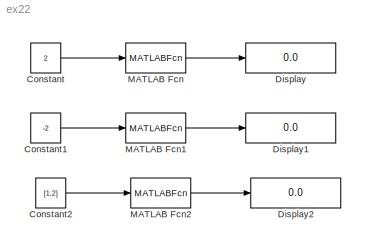
MODEL ex22
KIND model
CONFIG AbsTol = auto
CONFIG FixedStep = auto
CONFIG MaxStep = auto
CONFIG MinStep = auto
CONFIG RelTol = 1e-3
CONFIG Solver = ode45
CONFIG SolverMode = Auto
CONFIG StartTime = 0.0
CONFIG StopTime = 10.0
BLOCK [Constant] Constant
  Value = 2
BLOCK [Constant] Constant1
  Value = -2
BLOCK [Constant] Constant2
  Value = [1,2]
BLOCK [Display] Display
  Decimation = 1
  Ports = [1]
BLOCK [Display] Display1
  Decimation = 1
  Ports = [1]
BLOCK [Display] Display2
  Decimation = 1
  Ports = [1]
BLOCK [MATLABFcn] MATLAB Fcn
  MATLABFcn = functief
BLOCK [MATLABFcn] MATLAB Fcn1
  MATLABFcn = functief
BLOCK [MATLABFcn] MATLAB Fcn2
  MATLABFcn = functieg(u(1),u(2))
LINE Constant1:1 -> MATLAB Fcn1:1
LINE Constant2:1 -> MATLAB Fcn2:1
LINE Constant:1 -> MATLAB Fcn:1
LINE MATLAB Fcn1:1 -> Display1:1
LINE MATLAB Fcn2:1 -> Display2:1
LINE MATLAB Fcn:1 -> Display:1
